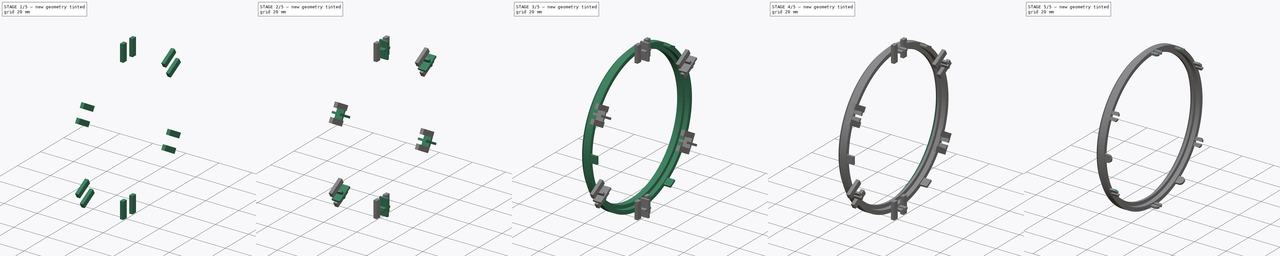
[diagram: build sequence overview — one tinted view per stage of 5, left to right]
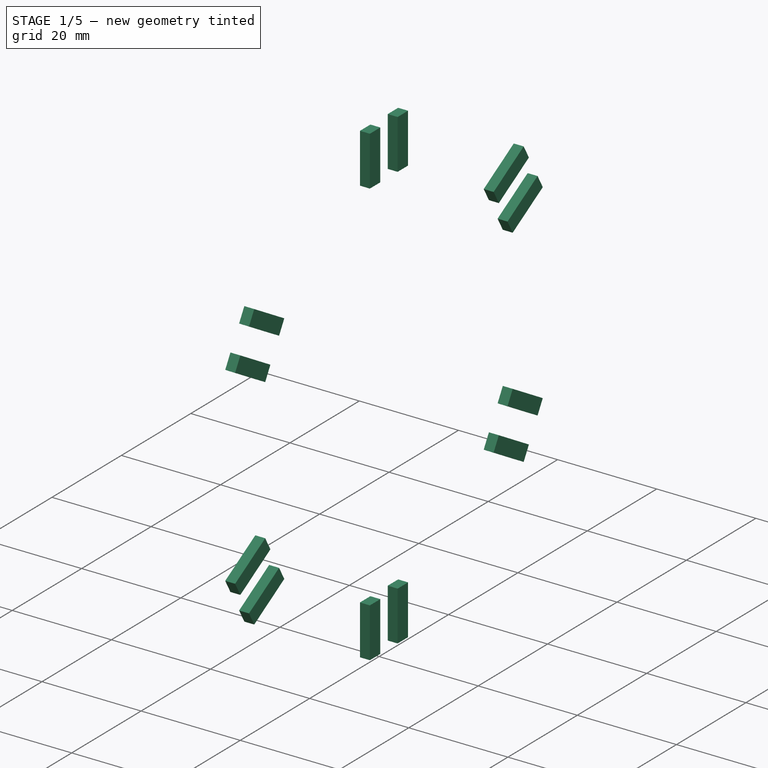
[diagram: stage 1 of 5 — iso view after this stage's code; geometry added in this stage tinted green]
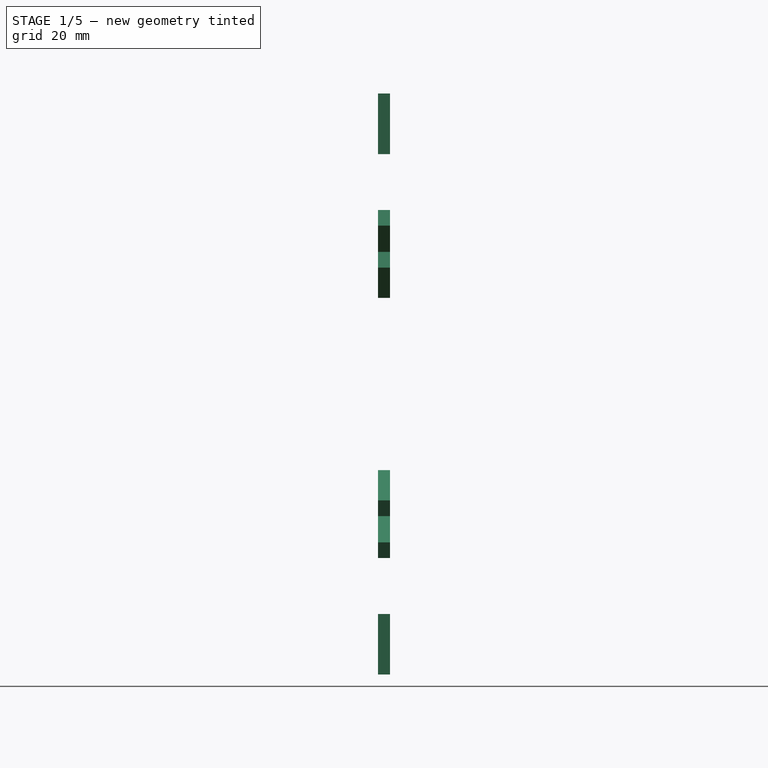
[diagram: stage 1 of 5 — front view after this stage's code; geometry added in this stage tinted green]
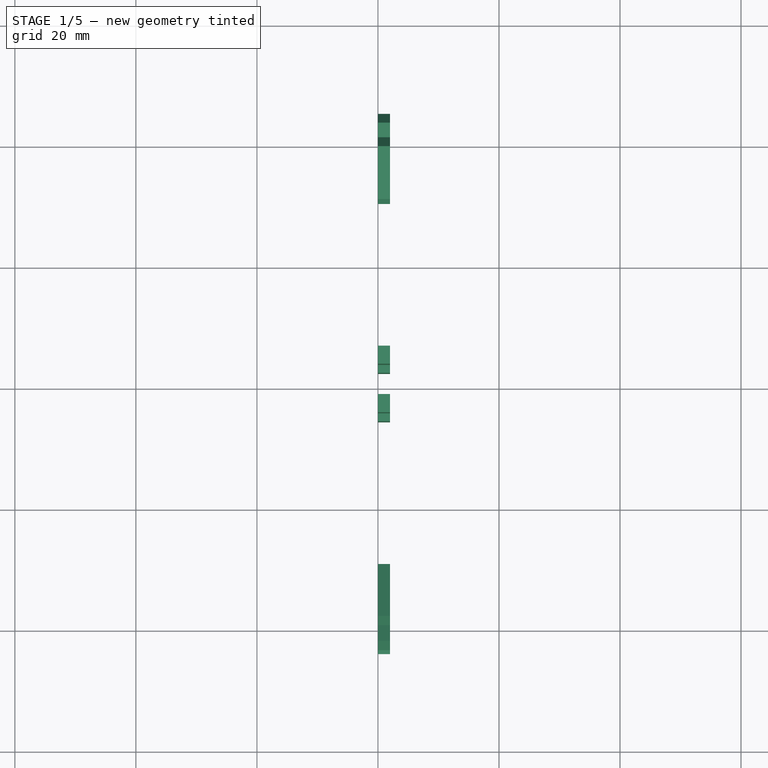
[diagram: stage 1 of 5 — top view after this stage's code; geometry added in this stage tinted green]
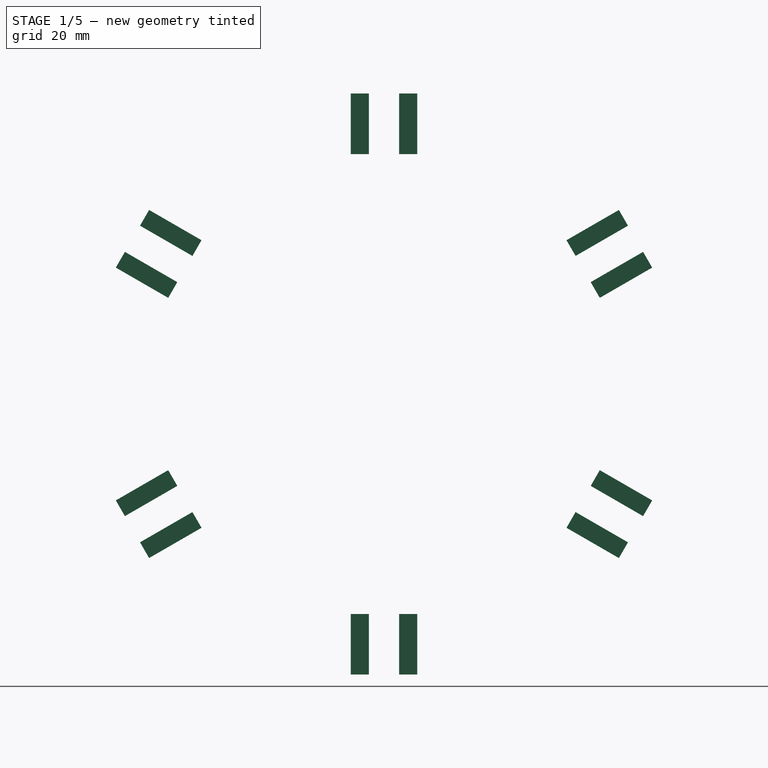
[diagram: stage 1 of 5 — right view after this stage's code; geometry added in this stage tinted green]
FCSTD DOCUMENT  (FreeCAD 0.16R6712 (Git))
Label: Frame_aerators
License: CreativeCommons Attribution-ShareAlike
LicenseURL: http://creativecommons.org/licenses/by-sa/4.0/
objects: Part::Box×5, Part::FeaturePython×5, Part::Cut×3, PartDesign::Chamfer×2, Part::MultiFuse×2, Sketcher::SketchObject×1, PartDesign::Revolution×1, Part::Chamfer×1, Part::Fillet×1
note: 22 computed .brp shape members not serialized (recipe doc carries the construction recipe); baked Part::Feature solids carry a one-line shape summary decoded from their .brp

FEATURE [Part::Box] Box003  label="fijación_R"
  Height = 10
  Length = 2
  Placement = pos=(0,-5.5,38) rot=(0,0,1;0rad)
  Width = 3
FEATURE [Part::Box] Box004  label="fijación_L"
  Height = 10
  Length = 2
  Placement = pos=(0,2.5,38) rot=(0,0,1;0rad)
  Width = 3
FEATURE [Part::FeaturePython] Array003  # Draft array (typed FeaturePython)
  Angle = 360
  ArrayType = 1
  Axis = (1,0,0)
  Base = -> Box004
  Center = (0,0,0)
  Fuse = false
  IntervalAxis = (0,0,0)
  IntervalX = (1,0,0)
  IntervalY = (0,1,0)
  IntervalZ = (0,0,0)
  NumberPolar = 6
  NumberX = 2
  NumberY = 2
  NumberZ = 1
FEATURE [Part::FeaturePython] Array004  # Draft array (typed FeaturePython)
  Angle = 360
  ArrayType = 1
  Axis = (1,0,0)
  Base = -> Box003
  Center = (0,0,0)
  Fuse = false
  IntervalAxis = (0,0,0)
  IntervalX = (1,0,0)
  IntervalY = (0,1,0)
  IntervalZ = (0,0,0)
  NumberPolar = 6
  NumberX = 2
  NumberY = 2
  NumberZ = 1
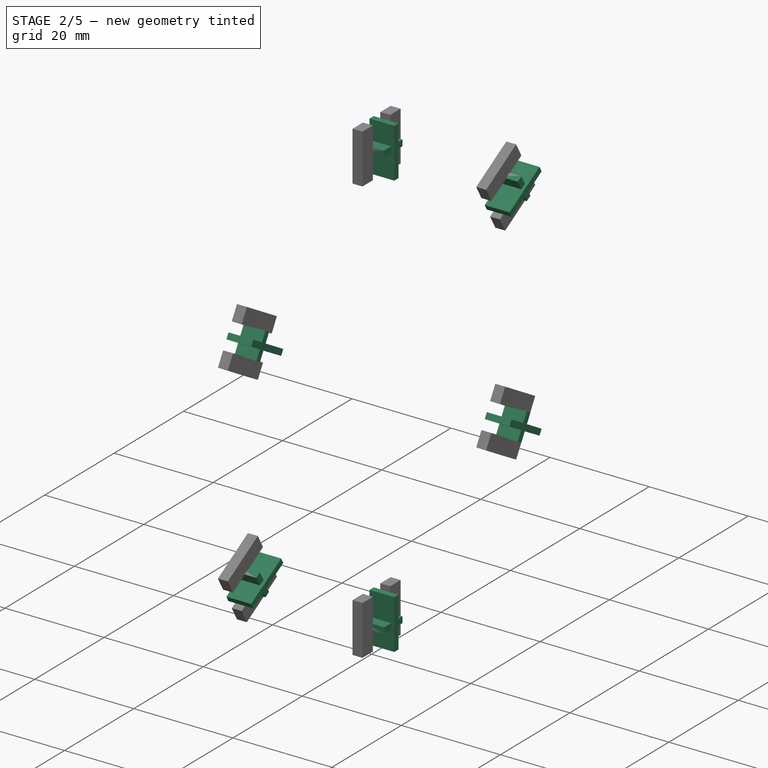
[diagram: stage 2 of 5 — iso view after this stage's code; geometry added in this stage tinted green]
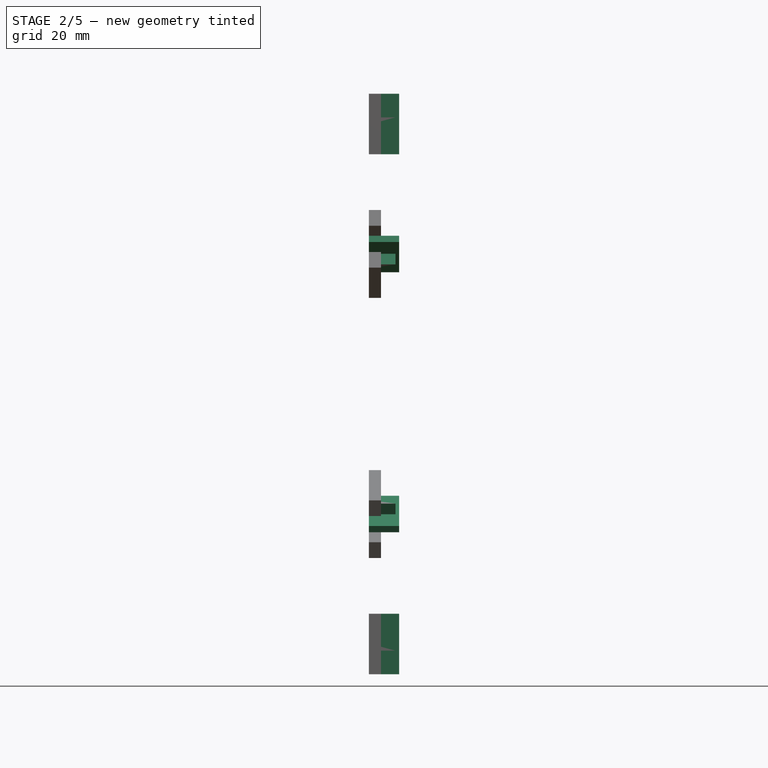
[diagram: stage 2 of 5 — front view after this stage's code; geometry added in this stage tinted green]
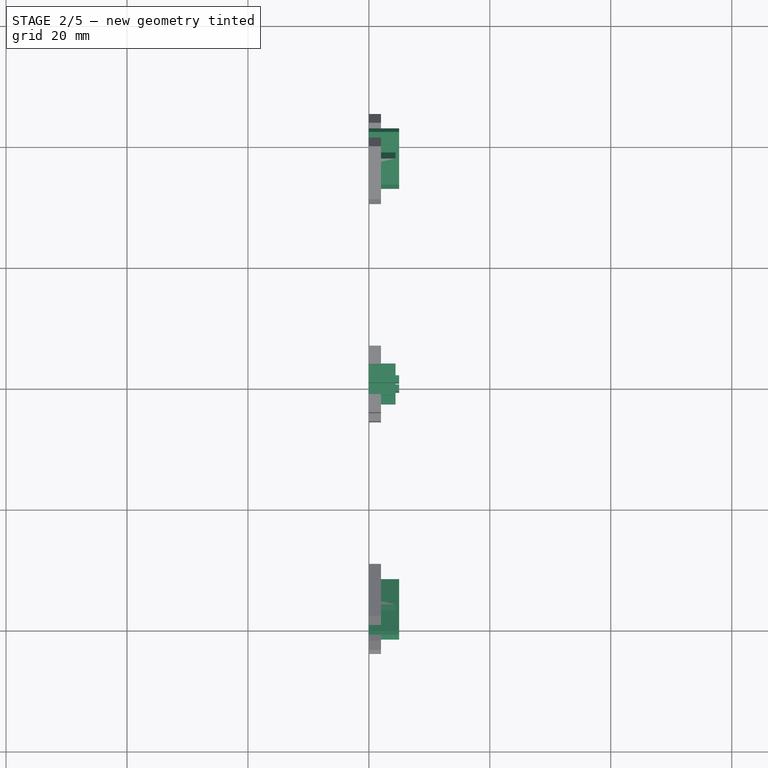
[diagram: stage 2 of 5 — top view after this stage's code; geometry added in this stage tinted green]
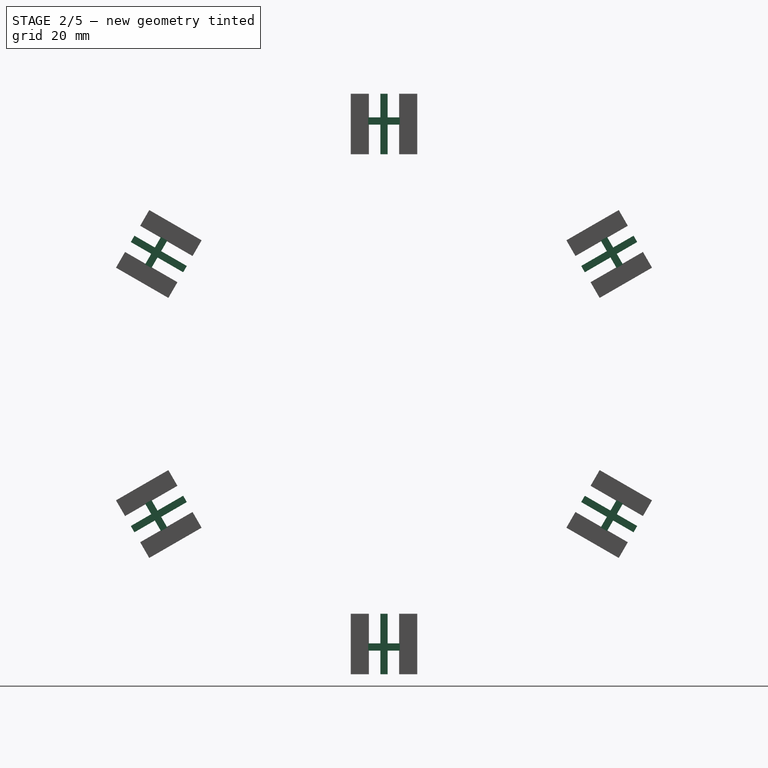
[diagram: stage 2 of 5 — right view after this stage's code; geometry added in this stage tinted green]
FEATURE [Part::Box] Box  label="pestañas"
  Height = 1.2
  Length = 4.4
  Placement = pos=(0,-2.625,42.9) rot=(0,0,1;0rad)
  Width = 5.25
FEATURE [Part::Box] Box001  label="mitades"
  Height = 10
  Length = 5
  Placement = pos=(0,-0.6,38) rot=(0,0,1;0rad)
  Width = 1.2
FEATURE [Part::FeaturePython] Array001  # Draft array (typed FeaturePython)
  Angle = 360
  ArrayType = 1
  Axis = (1,0,0)
  Base = -> Box
  Center = (0,0,0)
  Fuse = false
  IntervalAxis = (0,0,0)
  IntervalX = (1,0,0)
  IntervalY = (0,1,0)
  IntervalZ = (0,0,0)
  NumberPolar = 6
  NumberX = 2
  NumberY = 2
  NumberZ = 1
FEATURE [Part::FeaturePython] Array002  # Draft array (typed FeaturePython)
  Angle = 360
  ArrayType = 1
  Axis = (1,0,0)
  Base = -> Box001
  Center = (0,0,0)
  Fuse = false
  IntervalAxis = (0,0,0)
  IntervalX = (1,0,0)
  IntervalY = (0,1,0)
  IntervalZ = (0,0,0)
  NumberPolar = 6
  NumberX = 2
  NumberY = 2
  NumberZ = 1
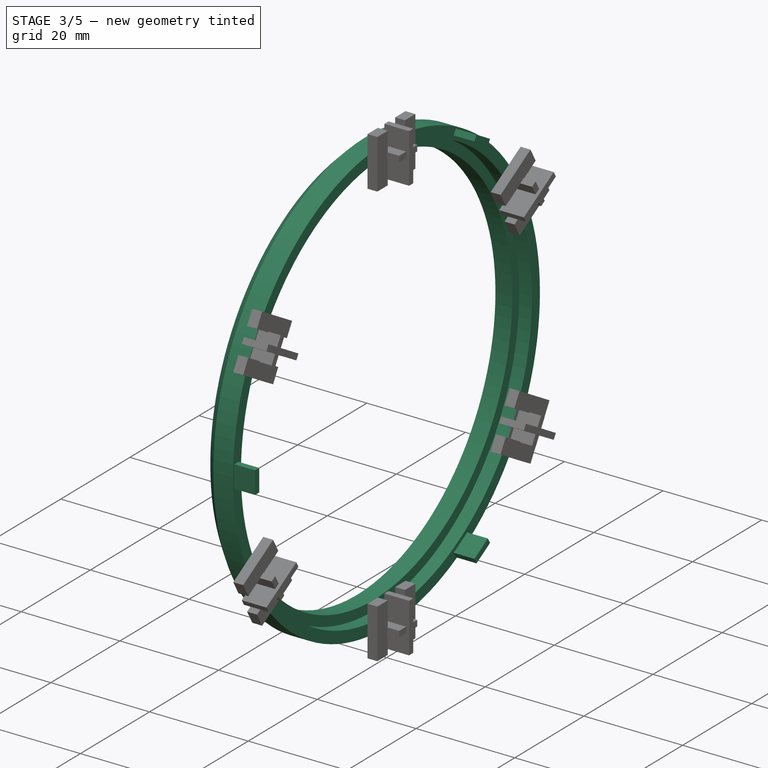
[diagram: stage 3 of 5 — iso view after this stage's code; geometry added in this stage tinted green]
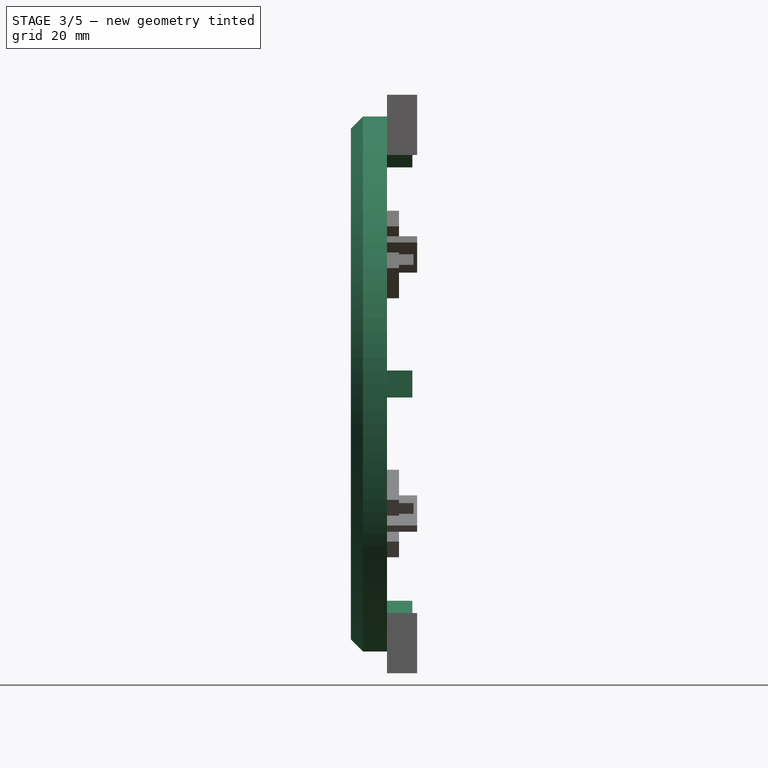
[diagram: stage 3 of 5 — front view after this stage's code; geometry added in this stage tinted green]
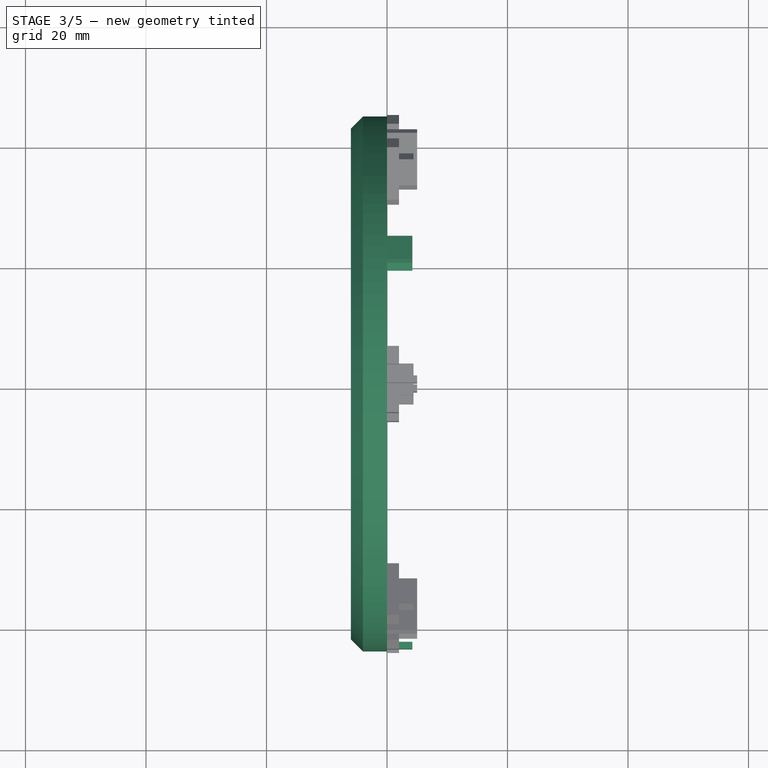
[diagram: stage 3 of 5 — top view after this stage's code; geometry added in this stage tinted green]
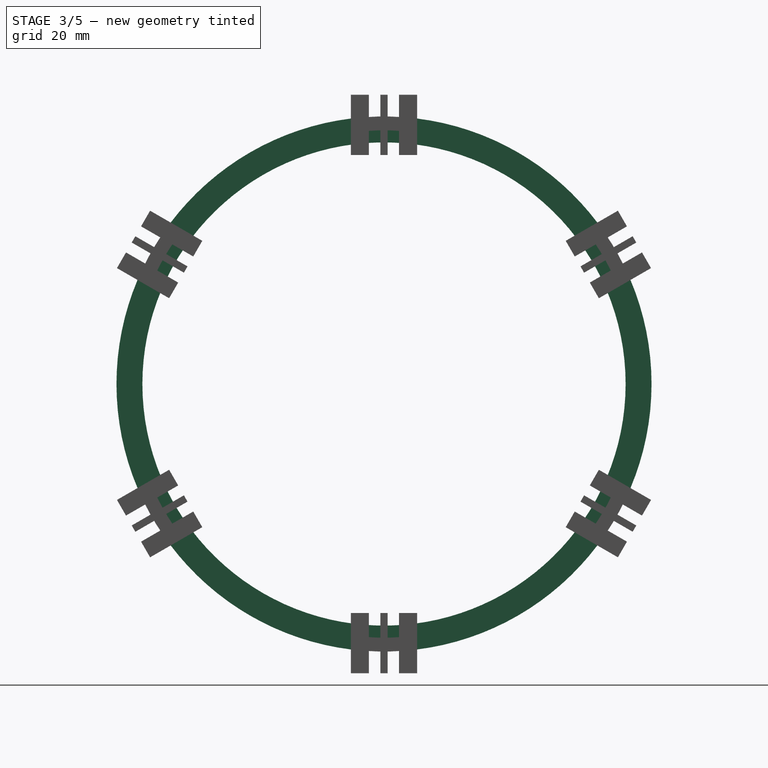
[diagram: stage 3 of 5 — right view after this stage's code; geometry added in this stage tinted green]
FEATURE [Sketcher::SketchObject] Sketch
  sketch-geometry (6):
    g0: LineSegment StartX=-6 StartY=44.4 StartZ=0 EndX=0 EndY=44.4 EndZ=0
    g1: LineSegment StartX=0 StartY=44.4 StartZ=0 EndX=0 EndY=42.1 EndZ=0
    g2: LineSegment StartX=-2.6 StartY=40.1 StartZ=0 EndX=-6 EndY=40.1 EndZ=0
    g3: LineSegment StartX=-6 StartY=40.1 StartZ=0 EndX=-6 EndY=44.4 EndZ=0
    g4: LineSegment StartX=-2.6 StartY=40.1 StartZ=0 EndX=-2.6 EndY=42.1 EndZ=0
    g5: LineSegment StartX=-2.6 StartY=42.1 StartZ=0 EndX=0 EndY=42.1 EndZ=0
  constraints (18):
    c: Coincident(g0,g1)
    c: Coincident(g2,g3)
    c: Coincident(g3,g0)
    c: Horizontal(g0)
    c: Horizontal(g2)
    c: Vertical(g1)
    c: Vertical(g3)
    c: DistanceY(g-1,g0) = 44.4
    c: DistanceX(g0,g0) = 6
    c: Coincident(g4,g5)
    c: Horizontal(g5)
    c: Vertical(g4)
    c: Coincident(g2,g4)
    c: Coincident(g1,g5)
    c: DistanceY(g-1,g2) = 40.1
    c: DistanceY(g-1,g1) = 42.1
    c: DistanceX(g2,g2) = 3.4
    c: PointOnObject(g1,g-2)
FEATURE [PartDesign::Revolution] Revolution
  Angle = 360
  Axis = (1,0,0)
  Base = (0,0,0)
  ReferenceAxis = -> Sketch [H_Axis]
  Sketch = -> Sketch
FEATURE [PartDesign::Chamfer] Chamfer
  Base = -> Revolution [Edge4]
  Size = 2
FEATURE [Part::Box] Box002  label="centradores"
  Height = 4.5
  Length = 4.2
  Placement = pos=(0,-44.025,-2.25) rot=(0,0,1;0rad)
  Width = 1.2
FEATURE [Part::FeaturePython] Array  # Draft array (typed FeaturePython)
  Angle = 360
  ArrayType = 1
  Axis = (1,0,0)
  Base = -> Box002
  Center = (0,0,0)
  Fuse = false
  IntervalAxis = (0,0,0)
  IntervalX = (1,0,0)
  IntervalY = (0,1,0)
  IntervalZ = (0,0,0)
  NumberPolar = 3
  NumberX = 2
  NumberY = 2
  NumberZ = 1
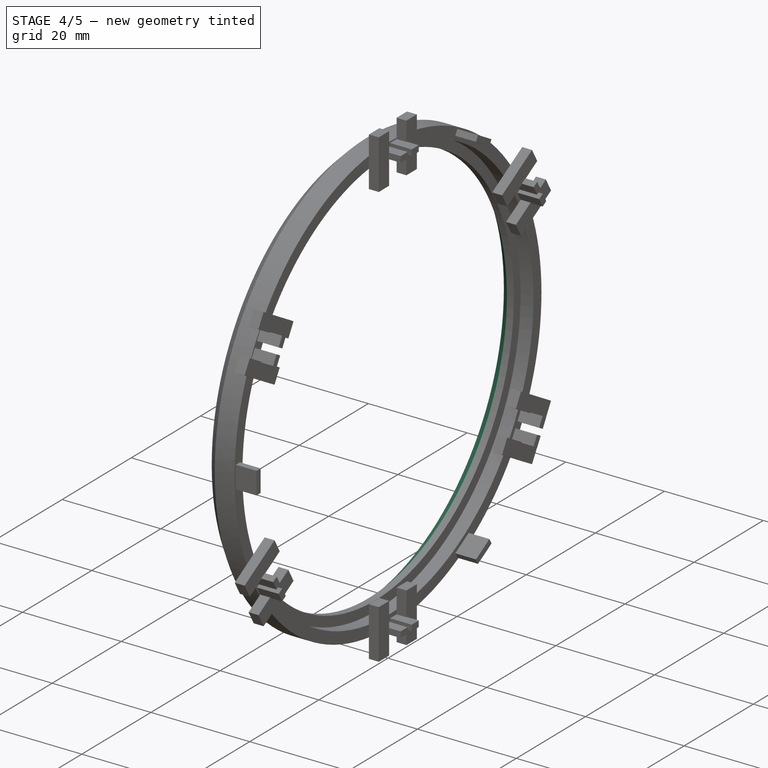
[diagram: stage 4 of 5 — iso view after this stage's code; geometry added in this stage tinted green]
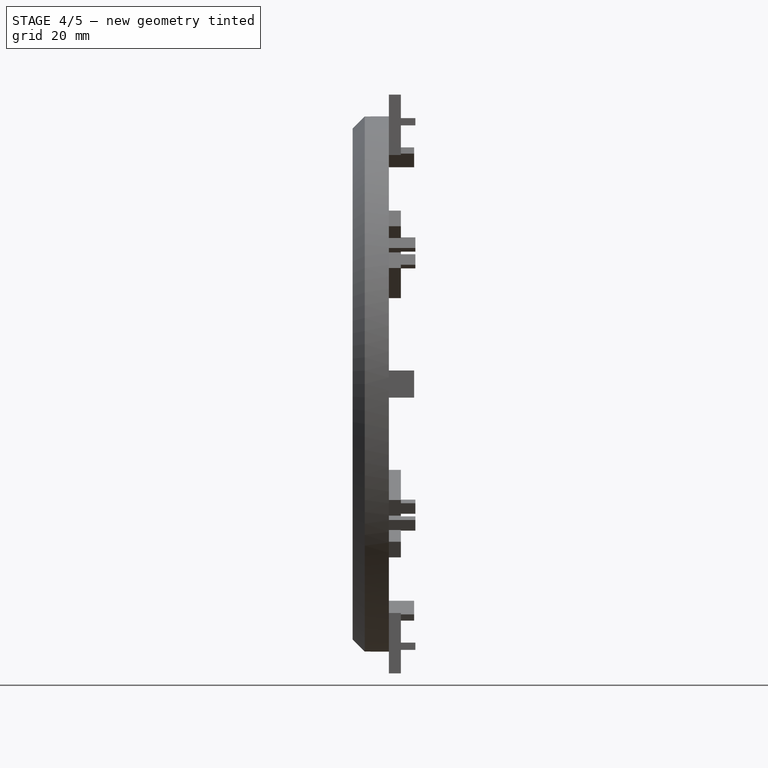
[diagram: stage 4 of 5 — front view after this stage's code; geometry added in this stage tinted green]
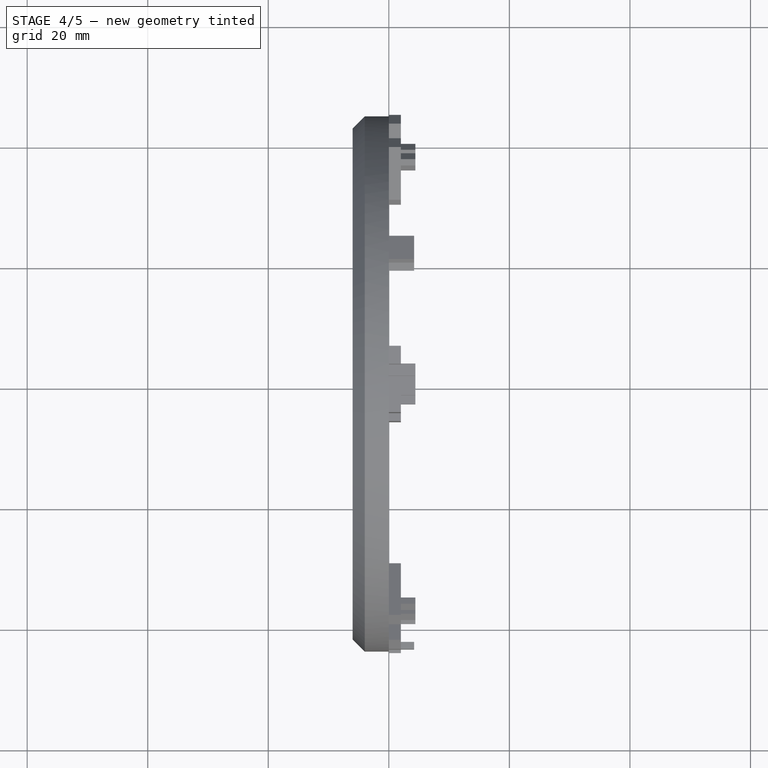
[diagram: stage 4 of 5 — top view after this stage's code; geometry added in this stage tinted green]
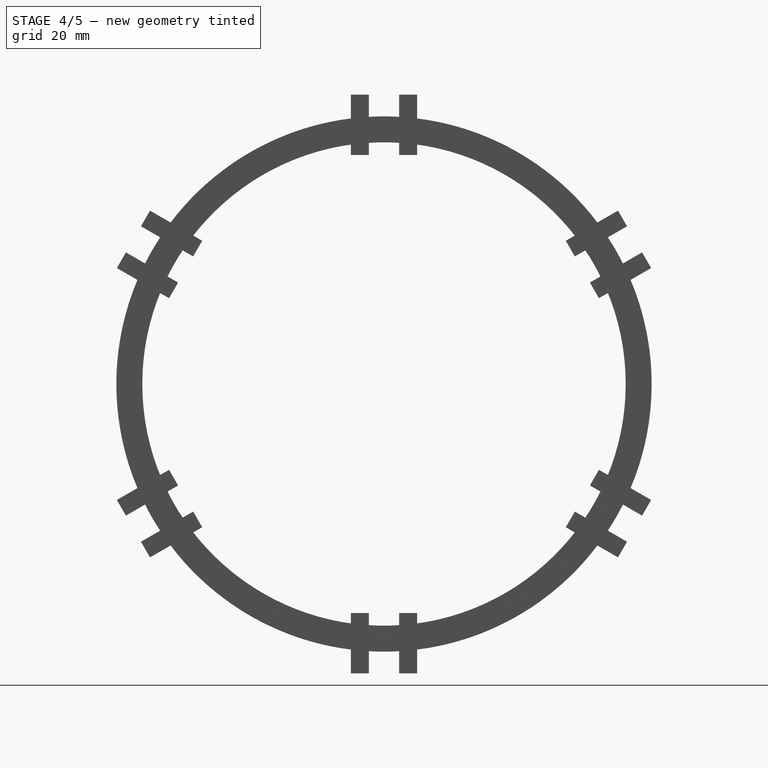
[diagram: stage 4 of 5 — right view after this stage's code; geometry added in this stage tinted green]
FEATURE [PartDesign::Chamfer] Chamfer001
  Base = -> Chamfer [Edge2]
  Size = 2
FEATURE [Part::MultiFuse] Fusion
  Shapes = -> [Array,Chamfer001]
FEATURE [Part::MultiFuse] Fusion001
  Shapes = -> [Array001,Fusion]
FEATURE [Part::Cut] Cut
  Base = -> Fusion001
  Tool = -> Array002
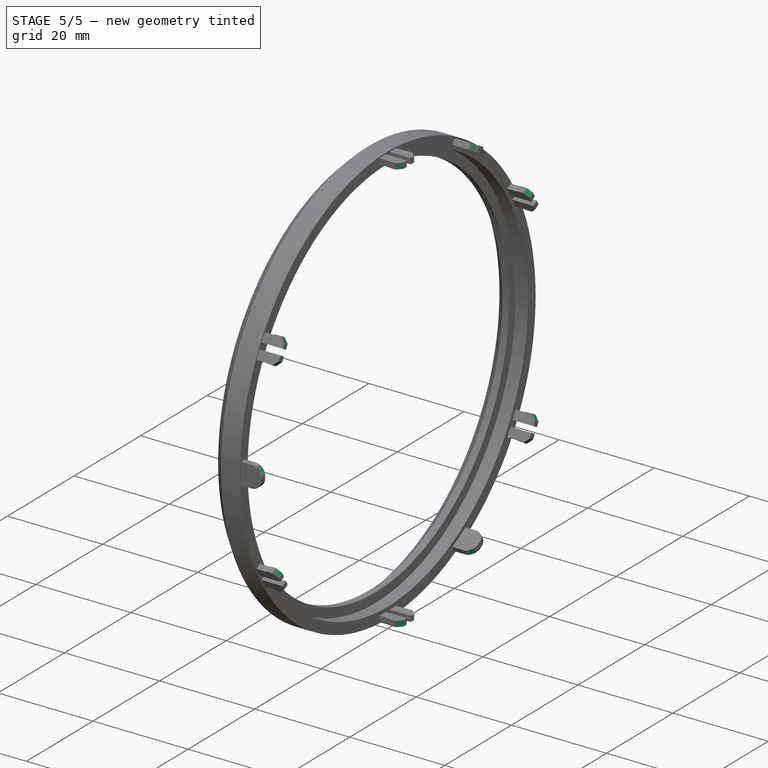
[diagram: stage 5 of 5 — iso view after this stage's code; geometry added in this stage tinted green]
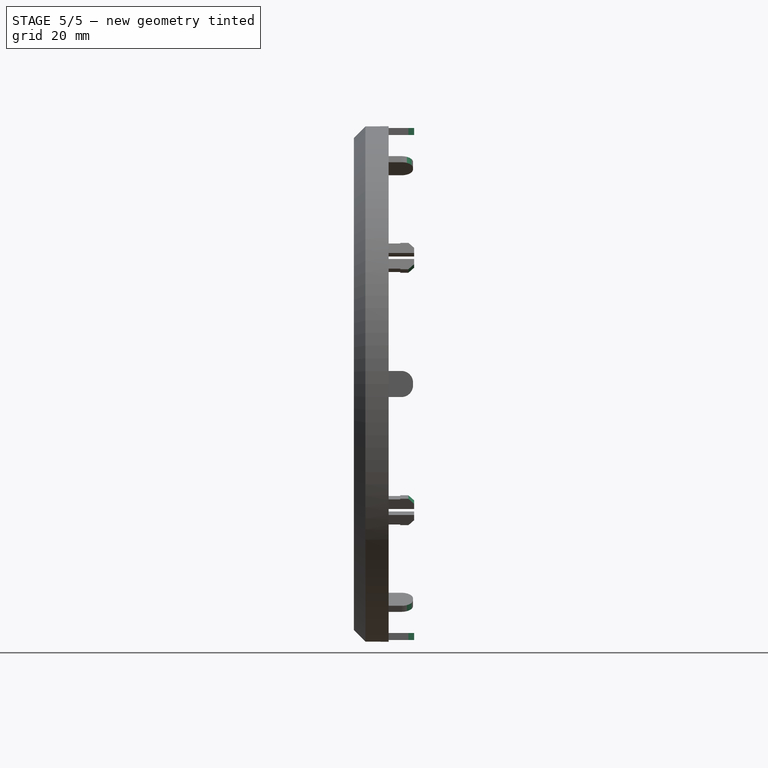
[diagram: stage 5 of 5 — front view after this stage's code; geometry added in this stage tinted green]
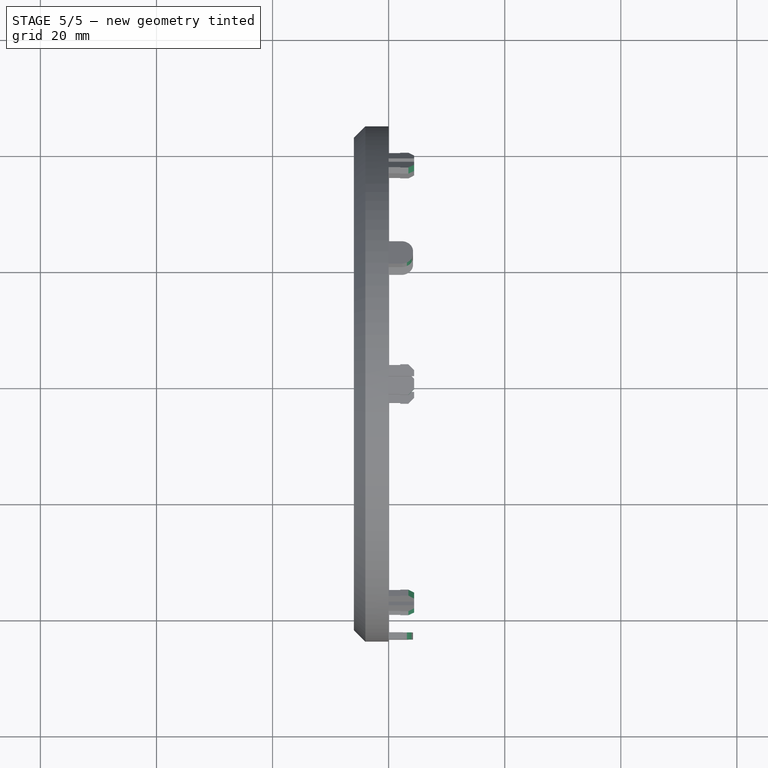
[diagram: stage 5 of 5 — top view after this stage's code; geometry added in this stage tinted green]
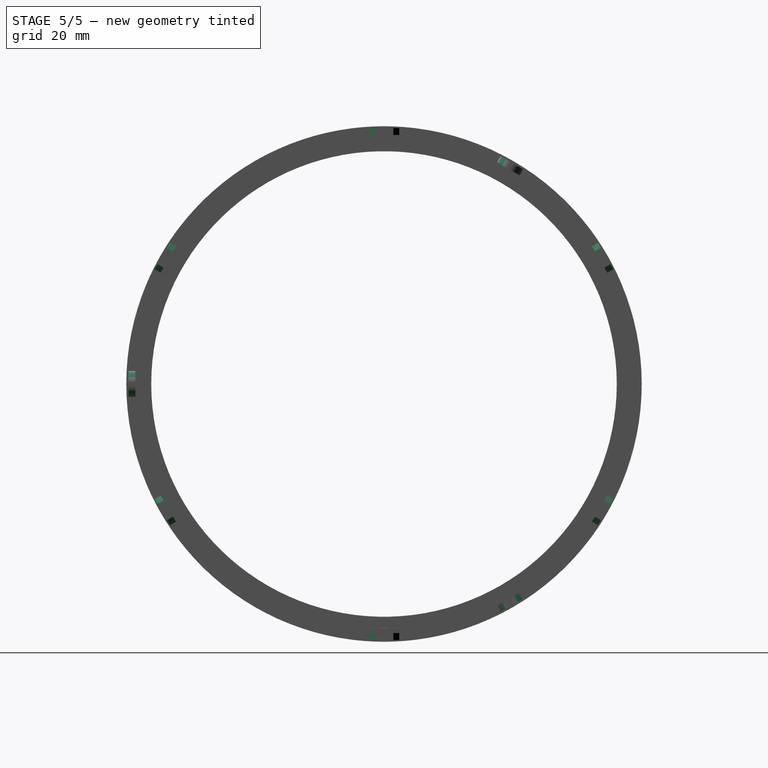
[diagram: stage 5 of 5 — right view after this stage's code; geometry added in this stage tinted green]
FEATURE [Part::Cut] Cut001
  Base = -> Cut
  Tool = -> Array003
FEATURE [Part::Cut] Cut002
  Base = -> Cut001
  Tool = -> Array004
FEATURE [Part::Chamfer] Chamfer002
  Base = -> Cut002
  Edges = 12 edges r=1: [Edge181,Edge197,Edge209,Edge223,Edge239,Edge251,Edge267,Edge281,Edge293,Edge309,Edge323,Edge335]
FEATURE [Part::Fillet] Fillet
  Base = -> Chamfer002
  Edges = 6 edges r=2: [Edge160,Edge163,Edge168,Edge171,Edge176,Edge179]
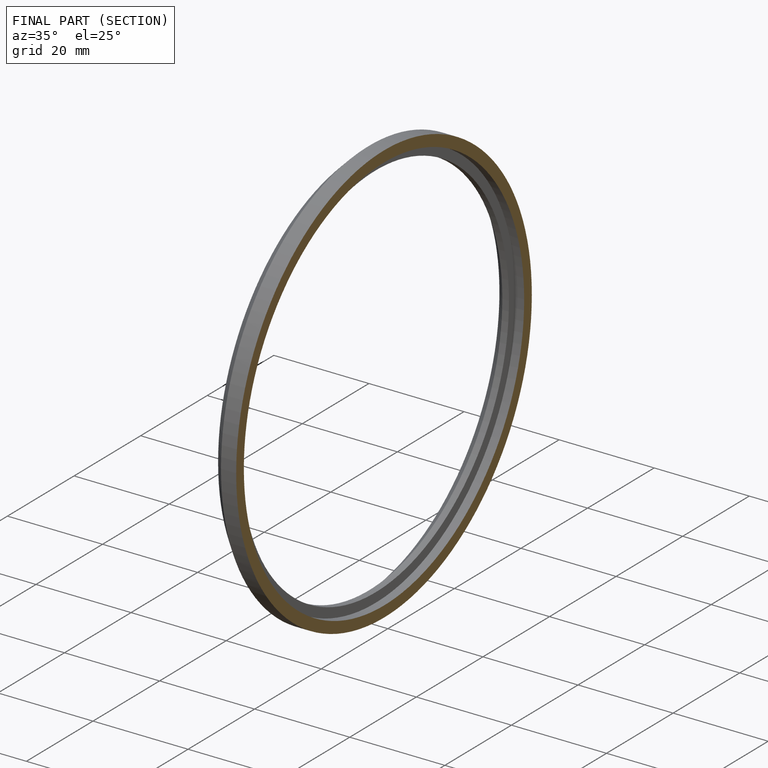
[diagram: finished part — half-section view (interior)]
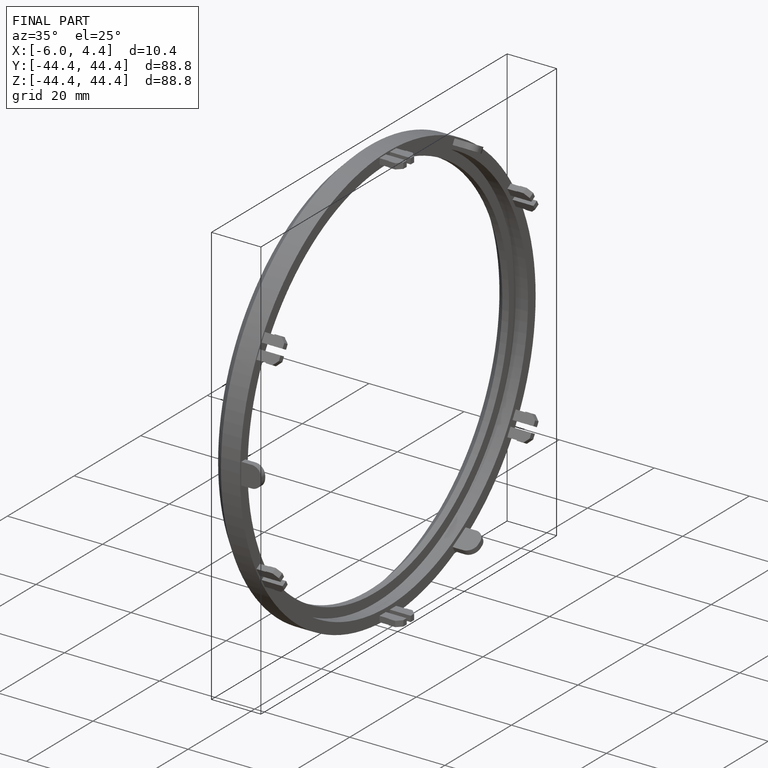
[diagram: finished part — iso view with bounding-box wireframe]
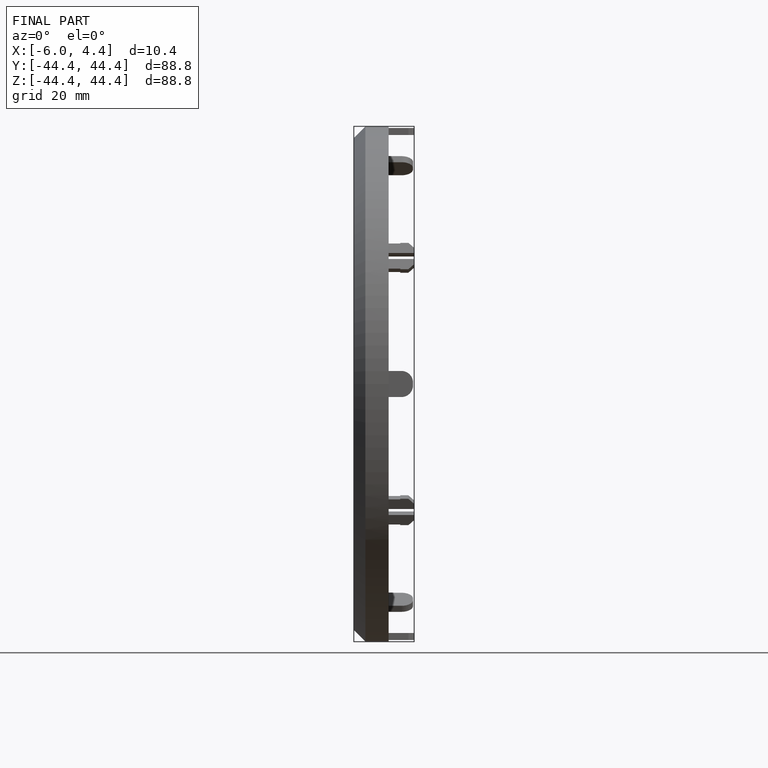
[diagram: finished part — front view with bounding-box wireframe]
